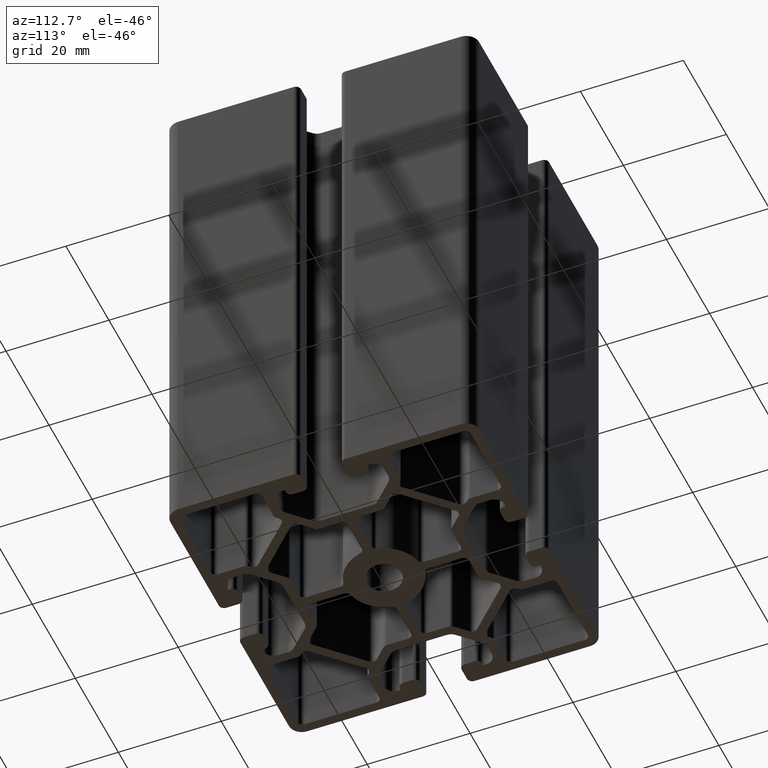
[diagram: clean part render]
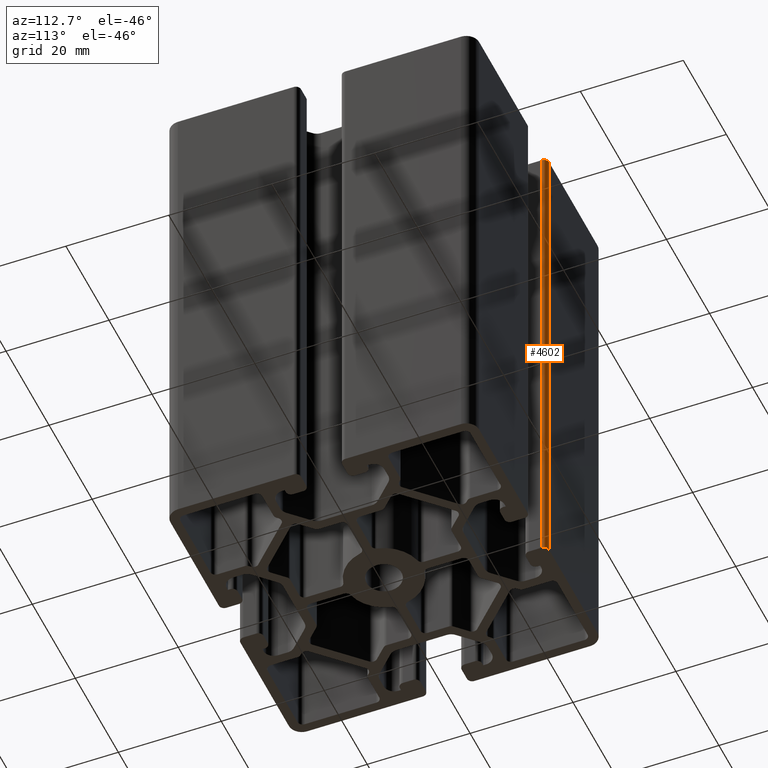
[diagram: same view with one face highlighted and labeled with its STEP entity id]
A machine part, auxiliary view. The second image highlights one B-rep face of the part: STEP entity #4602.
In plain terms, the highlighted cylindrical surface (edge-blend (fillet) strip) has radius 1 mm, axis along (0, 0, 1).
Its self-contained STEP definition (entity closure, byte-faithful):
#274=FACE_OUTER_BOUND('',#510,.T.);
#510=EDGE_LOOP('',(#3453,#3454,#3455,#3456));
#883=LINE('',#7327,#1347);
#884=LINE('',#7333,#1348);
#1347=VECTOR('',#5922,100.);
#1348=VECTOR('',#5929,100.);
#1693=CIRCLE('',#4964,0.99999800405115);
#1694=CIRCLE('',#4965,0.99999800405115);
#2049=VERTEX_POINT('',#7323);
#2050=VERTEX_POINT('',#7325);
#2051=VERTEX_POINT('',#7329);
#2052=VERTEX_POINT('',#7331);
#2635=EDGE_CURVE('',#2050,#2049,#883,.T.);
#2636=EDGE_CURVE('',#2049,#2051,#1693,.T.);
#2637=EDGE_CURVE('',#2052,#2050,#1694,.T.);
#2638=EDGE_CURVE('',#2051,#2052,#884,.T.);
#3453=ORIENTED_EDGE('',*,*,#2636,.F.);
#3454=ORIENTED_EDGE('',*,*,#2635,.F.);
#3455=ORIENTED_EDGE('',*,*,#2637,.F.);
#3456=ORIENTED_EDGE('',*,*,#2638,.F.);
#4425=CYLINDRICAL_SURFACE('',#4963,0.99999800405115);
#4602=ADVANCED_FACE('',(#274),#4425,.T.);
#4963=AXIS2_PLACEMENT_3D('',#7328,#5923,#5924);
#4964=AXIS2_PLACEMENT_3D('',#7330,#5925,#5926);
#4965=AXIS2_PLACEMENT_3D('',#7332,#5927,#5928);
#5922=DIRECTION('',(0.,0.,1.));
#5923=DIRECTION('center_axis',(0.,0.,1.));
#5924=DIRECTION('ref_axis',(-1.,0.,0.));
#5925=DIRECTION('center_axis',(0.,0.,1.));
#5926=DIRECTION('ref_axis',(-1.,0.,0.));
#5927=DIRECTION('center_axis',(0.,0.,-1.));
#5928=DIRECTION('ref_axis',(-1.,0.,0.));
#5929=DIRECTION('',(0.,0.,-1.));
#7323=CARTESIAN_POINT('',(-3.99999999999999,29.0000019959489,100.));
#7325=CARTESIAN_POINT('',(-3.99999999999999,29.0000019959489,0.));
#7327=CARTESIAN_POINT('',(-3.99999999999999,29.0000019959489,0.));
#7328=CARTESIAN_POINT('Origin',(-4.99999800405114,29.0000019959489,0.));
#7329=CARTESIAN_POINT('',(-4.99999800405114,30.,100.));
#7330=CARTESIAN_POINT('Origin',(-4.99999800405114,29.0000019959489,100.));
#7331=CARTESIAN_POINT('',(-4.99999800405114,30.,0.));
#7332=CARTESIAN_POINT('Origin',(-4.99999800405114,29.0000019959489,0.));
#7333=CARTESIAN_POINT('',(-4.99999800405114,30.,0.));